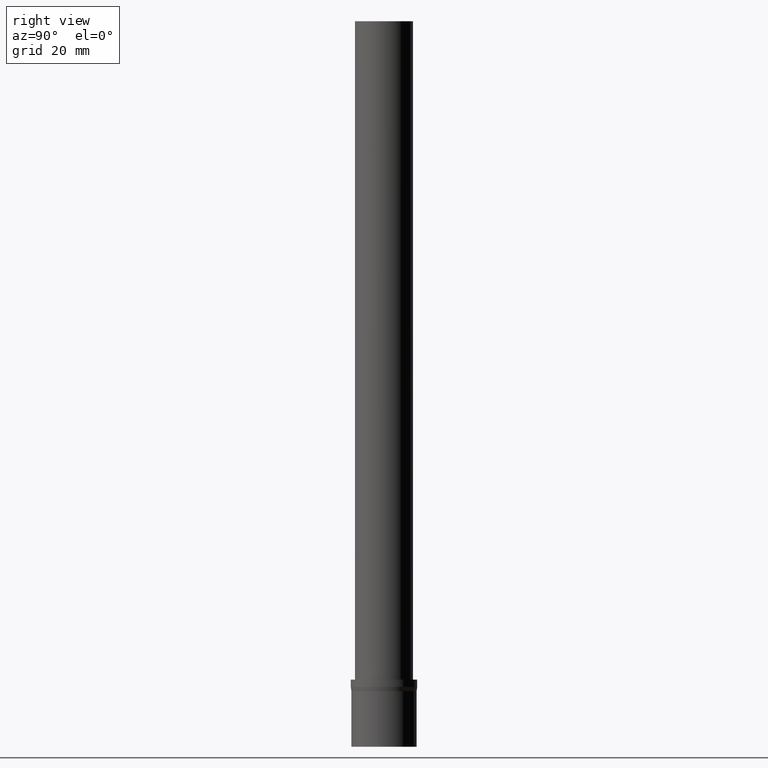
[diagram: clean part render]
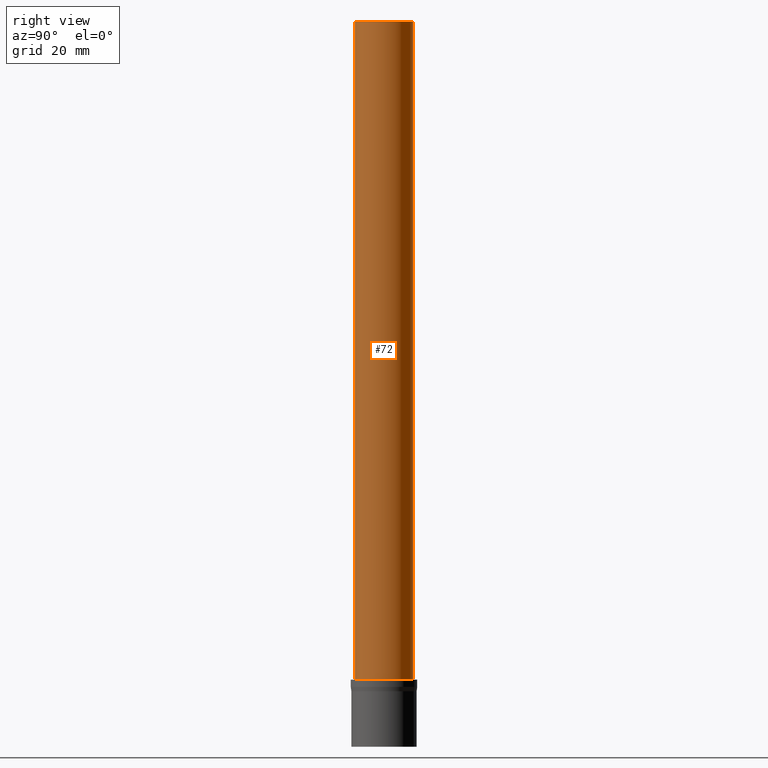
[diagram: same view with one face highlighted and labeled with its STEP entity id]
A machine part, right view. The second image highlights one B-rep face of the part: STEP entity #72.
In plain terms, the highlighted cylindrical surface (bore or boss wall) has radius 8 mm, axis along (0, 0, -1).
Its self-contained STEP definition (entity closure, byte-faithful):
#58=EDGE_CURVE('Unnamed[1]',#120,#120,#121,.T.);
#69=EDGE_CURVE('Unnamed[1]',#136,#136,#137,.T.);
#72=ADVANCED_FACE('Unnamed[1]',(#140,#141),#142,.T.);
#120=VERTEX_POINT('',#189);
#121=CIRCLE('',#190,8.0);
#136=VERTEX_POINT('',#208);
#137=CIRCLE('',#209,8.00000000000003);
#140=FACE_BOUND('',#213,.T.);
#141=FACE_BOUND('',#214,.T.);
#142=CYLINDRICAL_SURFACE('',#215,8.00000000000001);
#189=CARTESIAN_POINT('',(-1.22464679914735E-014,7.99999999999994,200.0));
#190=AXIS2_PLACEMENT_3D('',#251,#252,#253);
#208=CARTESIAN_POINT('',(-1.13279828921131E-015,8.00000000000003,18.5000000000001));
#209=AXIS2_PLACEMENT_3D('',#267,#268,#269);
#213=EDGE_LOOP('',(#271));
#214=EDGE_LOOP('',(#272));
#215=AXIS2_PLACEMENT_3D('',#273,#274,#275);
#251=CARTESIAN_POINT('',(-1.22464679914735E-014,-5.35136254120158E-014,200.0));
#252=DIRECTION('',(6.12323399573677E-017,2.62119965380345E-016,-1.0));
#253=DIRECTION('',(-2.08773715605518E-032,1.0,2.62119965380345E-016));
#267=CARTESIAN_POINT('',(-1.13279828921131E-015,-5.93885169548314E-015,18.5000000000001));
#268=DIRECTION('',(6.12323399573677E-017,2.62119965380345E-016,-1.0));
#269=DIRECTION('',(-2.08773715605518E-032,1.0,2.62119965380345E-016));
#271=ORIENTED_EDGE('',*,*,#69,.F.);
#272=ORIENTED_EDGE('',*,*,#58,.T.);
#273=CARTESIAN_POINT('',(-6.68963314034242E-015,-2.97262385537495E-014,109.25));
#274=DIRECTION('',(6.12323399573677E-017,2.62119965380345E-016,-1.0));
#275=DIRECTION('',(-2.08773715605518E-032,1.0,2.62119965380345E-016));